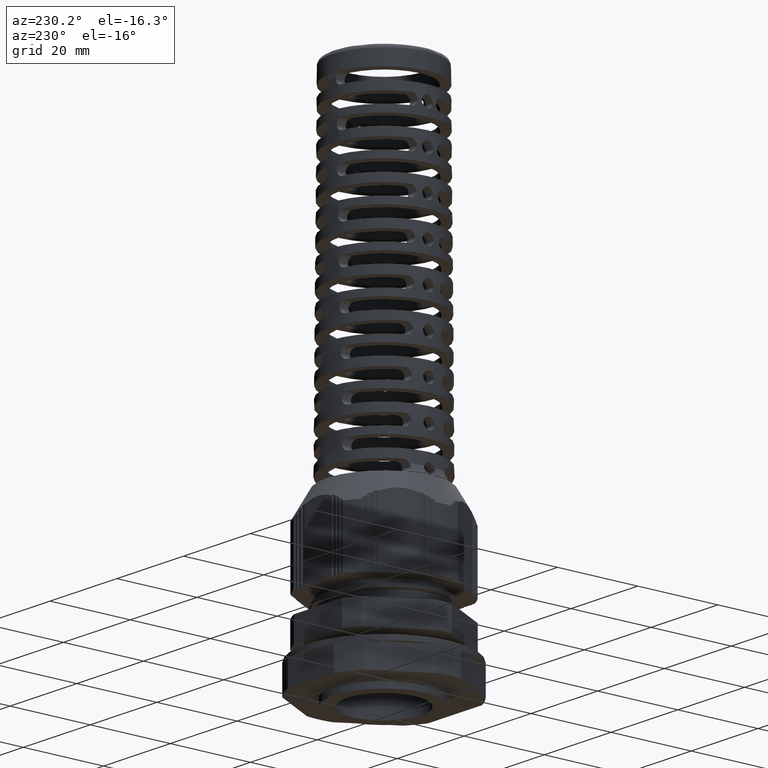
[diagram: clean part render]
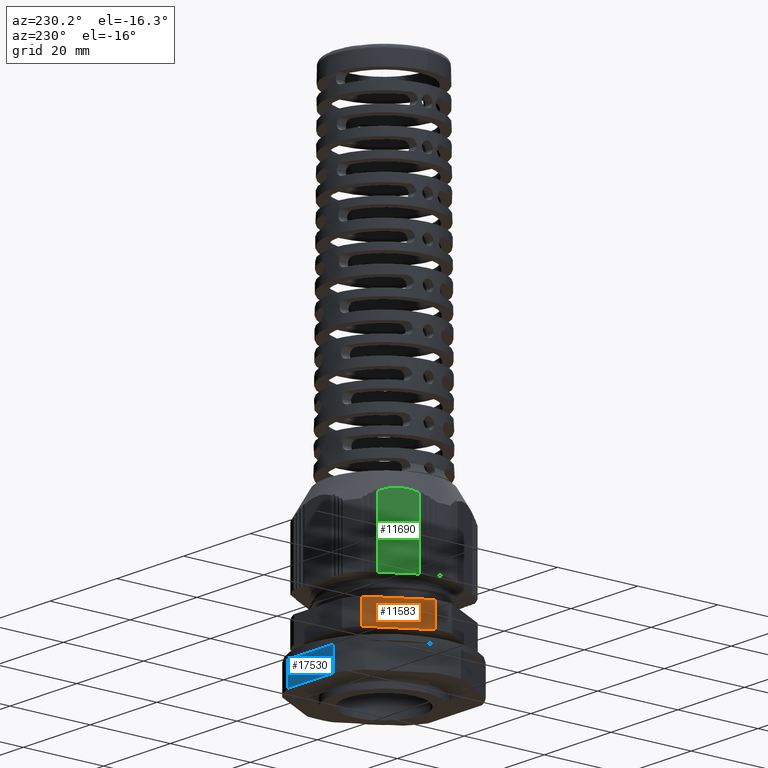
[diagram: same view with three faces highlighted in distinct colors, each labeled with its STEP entity id]
A machine part, auxiliary view with three faces highlighted in distinct colors.
Their STEP definitions:

[orange] entity #11583 — the highlighted planar face has unit normal (0.866, -0.5, 0).
#1569 = EDGE_LOOP ( 'NONE', ( #10843, #10834, #10838, #10839 ) ) ;
#3285 = CARTESIAN_POINT ( 'NONE',  ( -17.88629280492780200, 2.020032102811361700, 10.99999999999999800 ) ) ;
#3305 = CARTESIAN_POINT ( 'NONE',  ( -10.69254551995869200, 14.47996789718858000, 17.00000000000000000 ) ) ;
#3338 = CARTESIAN_POINT ( 'NONE',  ( -17.88629280492780900, 2.020032102811293800, 17.00000000000000000 ) ) ;
#3476 = LINE ( 'NONE', #3480, #10638 ) ;
#3480 = CARTESIAN_POINT ( 'NONE',  ( -10.69254551995868700, 14.47996789718858300, 6.550000000000000700 ) ) ;
#3507 = DIRECTION ( 'NONE',  ( 0.0000000000000000000, 0.0000000000000000000, 1.000000000000000000 ) ) ;
#3648 = LINE ( 'NONE', #3659, #10686 ) ;
#3649 = DIRECTION ( 'NONE',  ( -0.4999999999999963900, -0.8660254037844407100, 0.0000000000000000000 ) ) ;
#3659 = CARTESIAN_POINT ( 'NONE',  ( -10.69254551995868900, 14.47996789718859000, 17.00000000000000000 ) ) ;
#3818 = LINE ( 'NONE', #3826, #10729 ) ;
#3826 = CARTESIAN_POINT ( 'NONE',  ( -17.88629280492780900, 2.020032102811299500, 6.550000000000000700 ) ) ;
#3828 = DIRECTION ( 'NONE',  ( -0.0000000000000000000, -0.0000000000000000000, -1.000000000000000000 ) ) ;
#7127 = DIRECTION ( 'NONE',  ( 0.4999999999999997200, 0.8660254037844387100, 0.0000000000000000000 ) ) ;
#7143 = FACE_OUTER_BOUND ( 'NONE', #1569, .T. ) ;
#7153 = PLANE ( 'NONE',  #22527 ) ;
#7161 = CARTESIAN_POINT ( 'NONE',  ( -9.526279441628833700, 16.50000000000000400, 16.30000000000000100 ) ) ;
#7162 = DIRECTION ( 'NONE',  ( 0.8660254037844388200, -0.4999999999999997800, 0.0000000000000000000 ) ) ;
#9586 = VECTOR ( 'NONE', #19738, 1000.000000000000100 ) ;
#10638 = VECTOR ( 'NONE', #3507, 1000.000000000000000 ) ;
#10686 = VECTOR ( 'NONE', #3649, 1000.000000000000100 ) ;
#10729 = VECTOR ( 'NONE', #3828, 1000.000000000000000 ) ;
#10834 = ORIENTED_EDGE ( 'NONE', *, *, #17336, .F. ) ;
#10838 = ORIENTED_EDGE ( 'NONE', *, *, #17288, .F. ) ;
#10839 = ORIENTED_EDGE ( 'NONE', *, *, #17774, .F. ) ;
#10843 = ORIENTED_EDGE ( 'NONE', *, *, #17397, .F. ) ;
#11583 = ADVANCED_FACE ( 'NONE', ( #7143 ), #7153, .F. ) ;
#15706 = VERTEX_POINT ( 'NONE', #3285 ) ;
#15843 = VERTEX_POINT ( 'NONE', #3338 ) ;
#15849 = VERTEX_POINT ( 'NONE', #3305 ) ;
#17288 = EDGE_CURVE ( 'NONE', #18150, #15849, #3476, .T. ) ;
#17336 = EDGE_CURVE ( 'NONE', #15849, #15843, #3648, .T. ) ;
#17397 = EDGE_CURVE ( 'NONE', #15843, #15706, #3818, .T. ) ;
#17774 = EDGE_CURVE ( 'NONE', #15706, #18150, #19709, .T. ) ;
#18150 = VERTEX_POINT ( 'NONE', #19724 ) ;
#19709 = LINE ( 'NONE', #19722, #9586 ) ;
#19722 = CARTESIAN_POINT ( 'NONE',  ( -9.526279441628833700, 16.50000000000000400, 10.99999999999999800 ) ) ;
#19724 = CARTESIAN_POINT ( 'NONE',  ( -10.69254551995869200, 14.47996789718858000, 10.99999999999999800 ) ) ;
#19738 = DIRECTION ( 'NONE',  ( 0.4999999999999997200, 0.8660254037844387100, 0.0000000000000000000 ) ) ;
#22527 = AXIS2_PLACEMENT_3D ( 'NONE', #7161, #7162, #7127 ) ;

[blue] entity #17530 — the highlighted planar face has unit normal (0, -1, 0).
#734 = CARTESIAN_POINT ( 'NONE',  ( 9.237604307034001000, 18.25000000000002500, 8.832912421834270900 ) ) ;
#737 = PLANE ( 'NONE',  #9241 ) ;
#739 = FACE_OUTER_BOUND ( 'NONE', #1526, .T. ) ;
#744 = DIRECTION ( 'NONE',  ( 0.0000000000000000000, -0.0000000000000000000, -1.000000000000000000 ) ) ;
#747 = DIRECTION ( 'NONE',  ( 0.0000000000000000000, -1.000000000000000000, 0.0000000000000000000 ) ) ;
#1526 = EDGE_LOOP ( 'NONE', ( #10923, #10897, #10903, #10904 ) ) ;
#2546 = EDGE_CURVE ( 'NONE', #18531, #18486, #9968, .T. ) ;
#2575 = EDGE_CURVE ( 'NONE', #18521, #18512, #10388, .T. ) ;
#2602 = EDGE_CURVE ( 'NONE', #18486, #18521, #7720, .T. ) ;
#2603 = EDGE_CURVE ( 'NONE', #18512, #18531, #7693, .T. ) ;
#7693 = LINE ( 'NONE', #7715, #22152 ) ;
#7694 = CARTESIAN_POINT ( 'NONE',  ( -6.869315832017007600, 18.25000000000002500, 2.832912421834272300 ) ) ;
#7697 = DIRECTION ( 'NONE',  ( -0.0000000000000000000, -0.0000000000000000000, -1.000000000000000000 ) ) ;
#7706 = DIRECTION ( 'NONE',  ( 0.0000000000000000000, 0.0000000000000000000, 1.000000000000000000 ) ) ;
#7715 = CARTESIAN_POINT ( 'NONE',  ( 6.869315832017013800, 18.25000000000001800, 2.832912421834272300 ) ) ;
#7720 = LINE ( 'NONE', #7694, #22114 ) ;
#9241 = AXIS2_PLACEMENT_3D ( 'NONE', #734, #747, #744 ) ;
#9963 = DIRECTION ( 'NONE',  ( -1.000000000000000000, -0.0000000000000000000, -0.0000000000000000000 ) ) ;
#9968 = LINE ( 'NONE', #9985, #22037 ) ;
#9985 = CARTESIAN_POINT ( 'NONE',  ( 9.237604307034001000, 18.25000000000002500, 7.632912421834270800 ) ) ;
#10356 = CARTESIAN_POINT ( 'NONE',  ( -6.869315832017005800, 18.25000000000002500, 1.832912421834272300 ) ) ;
#10388 = LINE ( 'NONE', #10356, #21987 ) ;
#10428 = DIRECTION ( 'NONE',  ( 1.000000000000000000, -2.525322053022342400E-016, 0.0000000000000000000 ) ) ;
#10897 = ORIENTED_EDGE ( 'NONE', *, *, #2575, .F. ) ;
#10903 = ORIENTED_EDGE ( 'NONE', *, *, #2602, .F. ) ;
#10904 = ORIENTED_EDGE ( 'NONE', *, *, #2546, .F. ) ;
#10923 = ORIENTED_EDGE ( 'NONE', *, *, #2603, .F. ) ;
#17530 = ADVANCED_FACE ( 'NONE', ( #739 ), #737, .F. ) ;
#18486 = VERTEX_POINT ( 'NONE', #19817 ) ;
#18512 = VERTEX_POINT ( 'NONE', #19855 ) ;
#18521 = VERTEX_POINT ( 'NONE', #19876 ) ;
#18531 = VERTEX_POINT ( 'NONE', #19846 ) ;
#19817 = CARTESIAN_POINT ( 'NONE',  ( -6.869315832017007600, 18.25000000000002500, 7.632912421834270800 ) ) ;
#19846 = CARTESIAN_POINT ( 'NONE',  ( 6.869315832017012000, 18.25000000000002100, 7.632912421834270800 ) ) ;
#19855 = CARTESIAN_POINT ( 'NONE',  ( 6.869315832017012000, 18.25000000000002100, 1.832912421834272300 ) ) ;
#19876 = CARTESIAN_POINT ( 'NONE',  ( -6.869315832017005800, 18.25000000000002500, 1.832912421834272300 ) ) ;
#21987 = VECTOR ( 'NONE', #10428, 1000.000000000000000 ) ;
#22037 = VECTOR ( 'NONE', #9963, 1000.000000000000000 ) ;
#22114 = VECTOR ( 'NONE', #7697, 1000.000000000000000 ) ;
#22152 = VECTOR ( 'NONE', #7706, 1000.000000000000000 ) ;

[green] entity #11690 — the highlighted planar face has unit normal (-0.866, 0.5, 0).
#486 = CARTESIAN_POINT ( 'NONE',  ( -12.22787277015378200, 11.82070309360836200, 45.65609929398130600 ) ) ;
#490 = LINE ( 'NONE', #486, #9117 ) ;
#500 = DIRECTION ( 'NONE',  ( -0.0000000000000000000, -0.0000000000000000000, -1.000000000000000000 ) ) ;
#621 = LINE ( 'NONE', #626, #9190 ) ;
#626 = CARTESIAN_POINT ( 'NONE',  ( -16.35096555473486300, 4.679296906390615800, 45.65609929398130600 ) ) ;
#652 = DIRECTION ( 'NONE',  ( 0.0000000000000000000, 0.0000000000000000000, 1.000000000000000000 ) ) ;
#965 = CARTESIAN_POINT ( 'NONE',  ( -16.35096555473486300, 4.679296906390615800, 21.95609929398128900 ) ) ;
#967 = DIRECTION ( 'NONE',  ( -0.4999999999998595600, -0.8660254037845196400, 0.0000000000000000000 ) ) ;
#1002 = LINE ( 'NONE', #965, #9312 ) ;
#1482 = ORIENTED_EDGE ( 'NONE', *, *, #17476, .T. ) ;
#1489 = ORIENTED_EDGE ( 'NONE', *, *, #2484, .F. ) ;
#1505 = ORIENTED_EDGE ( 'NONE', *, *, #17504, .T. ) ;
#1520 = ORIENTED_EDGE ( 'NONE', *, *, #17550, .T. ) ;
#1705 = EDGE_LOOP ( 'NONE', ( #1505, #1489, #1482, #1520 ) ) ;
#2484 = EDGE_CURVE ( 'NONE', #11561, #11481, #20073, .T. ) ;
#3313 = CARTESIAN_POINT ( 'NONE',  ( -12.22787277015378000, 11.82070309360836400, 21.95609929398128900 ) ) ;
#3358 = CARTESIAN_POINT ( 'NONE',  ( -16.35096555473486300, 4.679296906390615800, 21.95609929398128900 ) ) ;
#5242 = PLANE ( 'NONE',  #10272 ) ;
#5244 = CARTESIAN_POINT ( 'NONE',  ( -16.35096555473486300, 4.679296906390615800, 45.65609929398130600 ) ) ;
#5248 = DIRECTION ( 'NONE',  ( -0.8660254037845197500, 0.4999999999998596100, 0.0000000000000000000 ) ) ;
#5254 = DIRECTION ( 'NONE',  ( -0.4999999999998595600, -0.8660254037845196400, 0.0000000000000000000 ) ) ;
#5280 = FACE_OUTER_BOUND ( 'NONE', #1705, .T. ) ;
#6698 = CARTESIAN_POINT ( 'NONE',  ( -16.35096555473486300, 4.679296932482009700, 38.20591730645655600 ) ) ;
#7005 = CARTESIAN_POINT ( 'NONE',  ( -12.22787277015378200, 11.82070309360836200, 38.20591731888887900 ) ) ;
#9117 = VECTOR ( 'NONE', #500, 1000.000000000000000 ) ;
#9190 = VECTOR ( 'NONE', #652, 1000.000000000000000 ) ;
#9312 = VECTOR ( 'NONE', #967, 1000.000000000000100 ) ;
#9500 = CARTESIAN_POINT ( 'NONE',  ( -12.55609018230056000, 11.25221385984115600, 38.48155509909658900 ) ) ;
#9503 = CARTESIAN_POINT ( 'NONE',  ( -12.22787277015378200, 11.82070309360836200, 38.20591731888887900 ) ) ;
#9505 = CARTESIAN_POINT ( 'NONE',  ( -14.11289219843104600, 8.555753670576482500, 39.08466891770792300 ) ) ;
#9513 = CARTESIAN_POINT ( 'NONE',  ( -12.89132952913233300, 10.67156227843210000, 38.70129799979326900 ) ) ;
#9514 = CARTESIAN_POINT ( 'NONE',  ( -14.99132157323948900, 7.034269362546732300, 39.00595898241063300 ) ) ;
#9518 = CARTESIAN_POINT ( 'NONE',  ( -16.18668845527463100, 4.963833189175879600, 38.34387762314115400 ) ) ;
#9527 = CARTESIAN_POINT ( 'NONE',  ( -15.68129418484142900, 5.839201743420730400, 38.68652689665325500 ) ) ;
#9536 = CARTESIAN_POINT ( 'NONE',  ( -13.40714428015537300, 9.778144922366363900, 38.92778421832876000 ) ) ;
#9538 = CARTESIAN_POINT ( 'NONE',  ( -16.02003076575548600, 5.252492774895202400, 38.46833992483062300 ) ) ;
#9539 = CARTESIAN_POINT ( 'NONE',  ( -16.35096555473486300, 4.679296932482009700, 38.20591730645655600 ) ) ;
#9563 = CARTESIAN_POINT ( 'NONE',  ( -13.58124546936283200, 9.476592817000780000, 38.98606254506221100 ) ) ;
#9568 = CARTESIAN_POINT ( 'NONE',  ( -14.64241935350093500, 7.638585734007693700, 39.08467290040108800 ) ) ;
#9570 = CARTESIAN_POINT ( 'NONE',  ( -15.50904188609255700, 6.137551476574434300, 38.78015625149169000 ) ) ;
#9575 = CARTESIAN_POINT ( 'NONE',  ( -13.93421156086020000, 8.865237613178104300, 39.06469985283399600 ) ) ;
#10272 = AXIS2_PLACEMENT_3D ( 'NONE', #5244, #5248, #5254 ) ;
#11481 = VERTEX_POINT ( 'NONE', #6698 ) ;
#11561 = VERTEX_POINT ( 'NONE', #7005 ) ;
#11690 = ADVANCED_FACE ( 'NONE', ( #5280 ), #5242, .T. ) ;
#15901 = VERTEX_POINT ( 'NONE', #3313 ) ;
#15978 = VERTEX_POINT ( 'NONE', #3358 ) ;
#17476 = EDGE_CURVE ( 'NONE', #11561, #15901, #490, .T. ) ;
#17504 = EDGE_CURVE ( 'NONE', #15978, #11481, #621, .T. ) ;
#17550 = EDGE_CURVE ( 'NONE', #15901, #15978, #1002, .T. ) ;
#20073 = B_SPLINE_CURVE_WITH_KNOTS ( 'NONE', 3,
 ( #9503, #9500, #9513, #9536, #9563, #9575, #9505, #9568, #9514, #9570, #9527, #9538, #9518, #9539 ),
 .UNSPECIFIED., .F., .F.,
 ( 4, 2, 2, 2, 2, 2, 4 ),
 ( 0.0000000000000000000, 0.002111443737916730500, 0.003167165606875096600, 0.004222887475833462700, 0.006334331213750197600, 0.007390053082708568000, 0.008445774951666939300 ),
 .UNSPECIFIED. ) ;